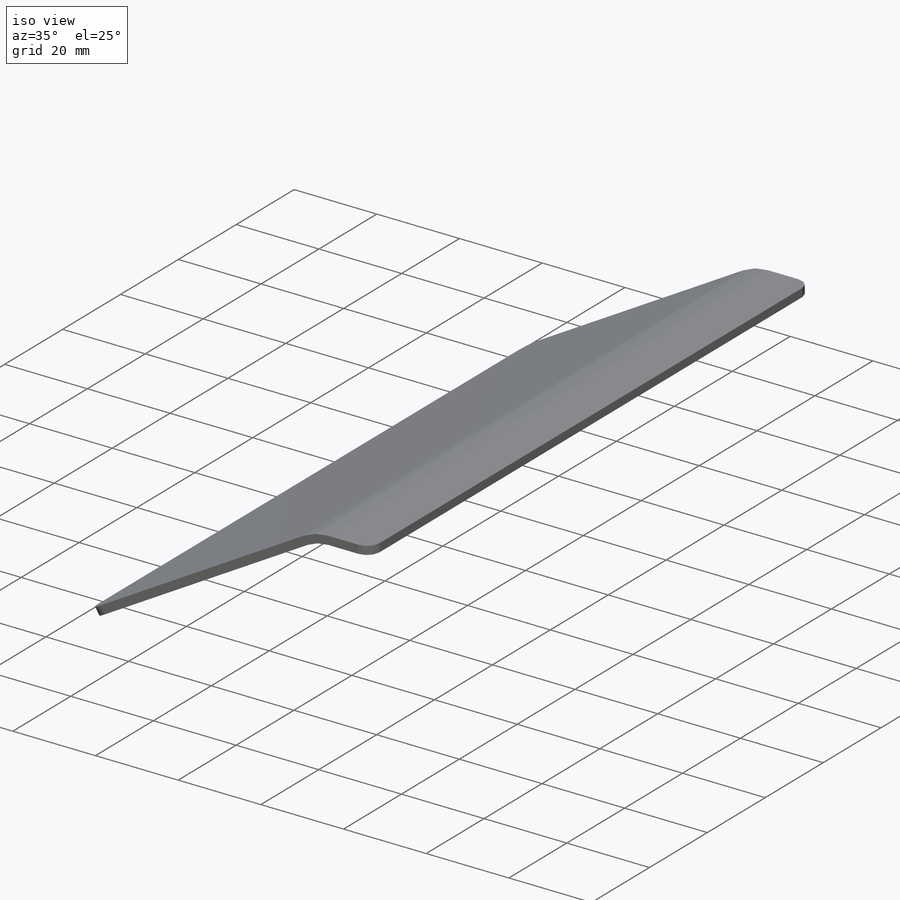
[diagram: iso view]
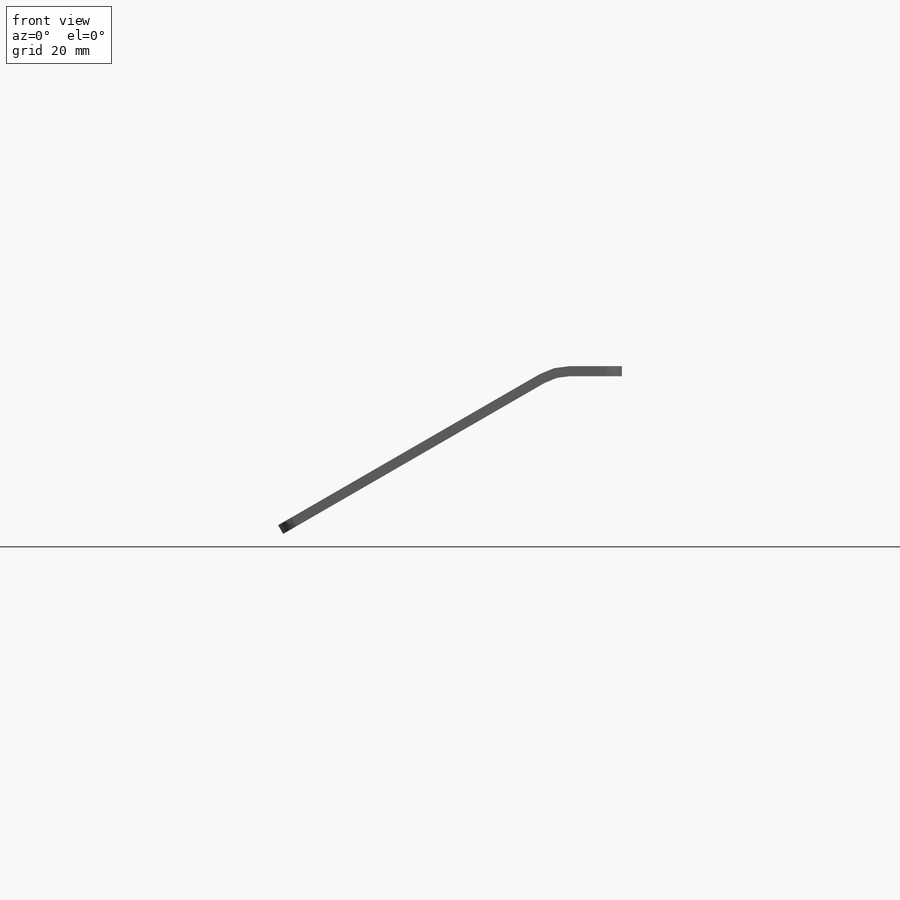
[diagram: front view]
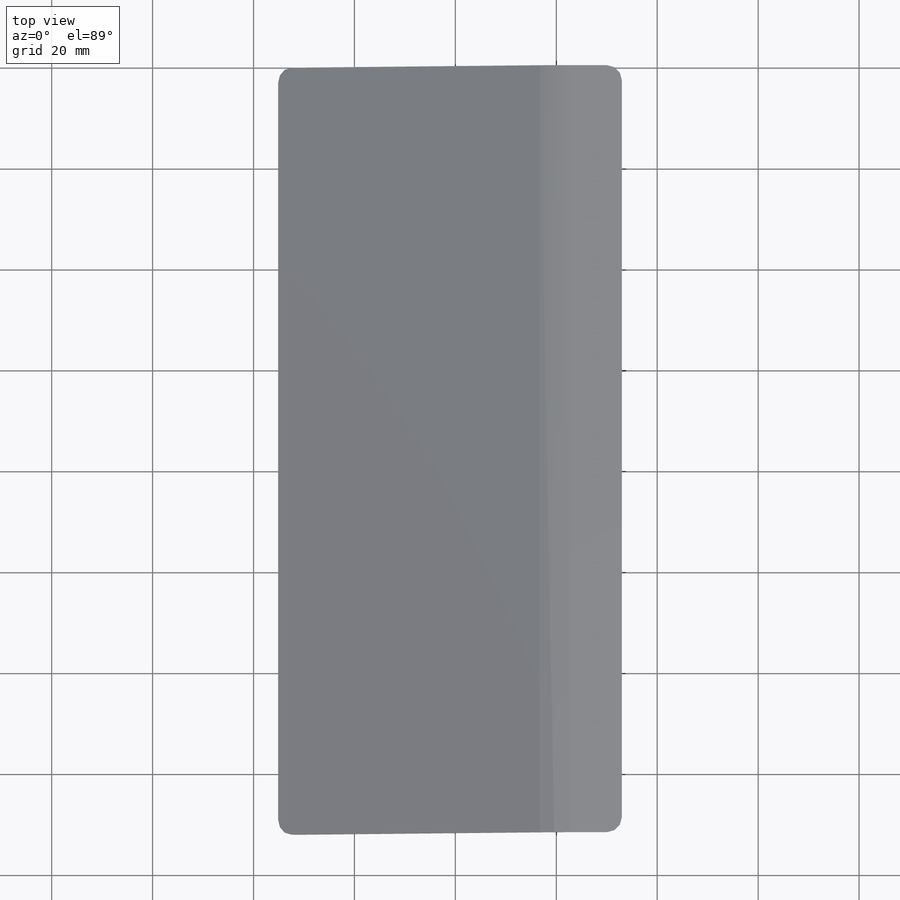
[diagram: top view]
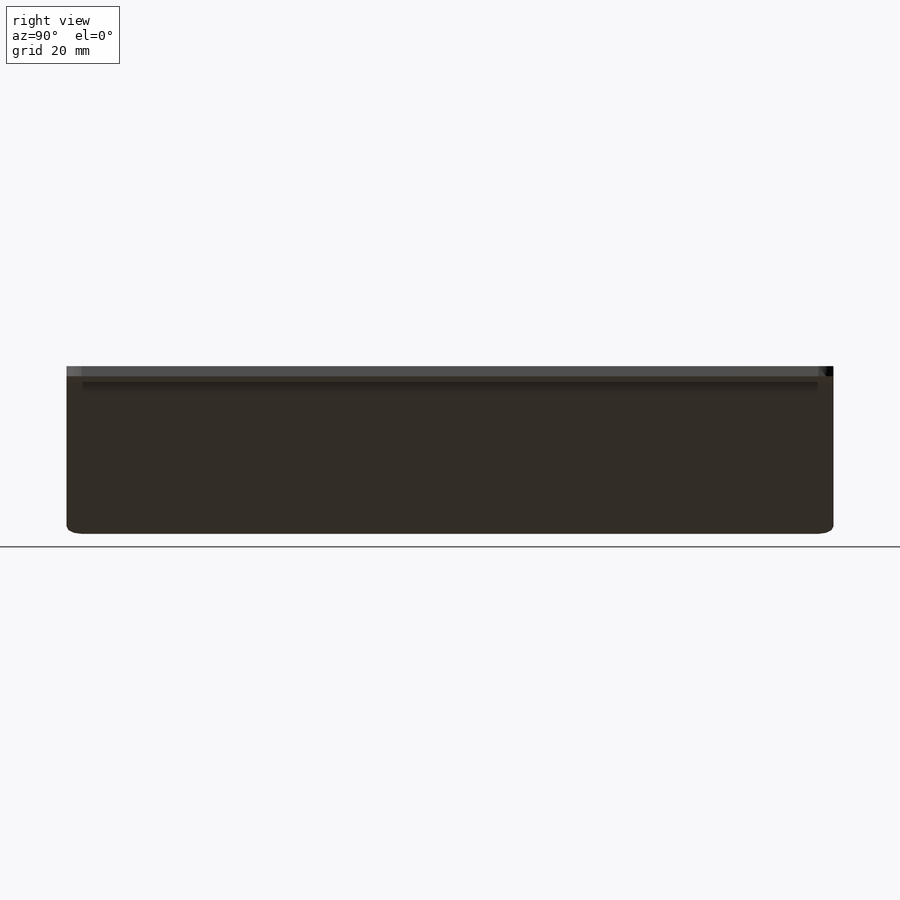
[diagram: right view]
SOLIDWORKS PART (.sldprt)
format: sldprt  version: not decoded by parser v0  size: 329,728 bytes
history: native  units: mm
features: fillet x4, sketch x3, sheet_metal_op x2, material x1 + 1 further entry (+11 scaffold rows collapsed; 3 parser-record rows omitted)
feature tree (25):
  scaffold x11  (default folders/planes/origin — collapsed)
  material  "Material <not specified>"
  sketch  "Sketch1"  dims[c1.D2=10.0mm c1.D1=~37.453507mm c2.D1=~159.372365deg c3.D1=~2617.993878mm c3.D3=13.0mm c3.D4=62.5mm]
  sheet_metal_op  "Sheet-Metal1"
  sheet_metal_op  "Base-Flange1"
  fillet  "Fillet5"  Radius=3mm
  fillet  "Fillet6"  Radius=3mm
  fillet  "Fillet7"  Radius=3mm
  fillet  "Fillet8"  Radius=3mm
  parser-record x3  (decoder bookkeeping rows leaked as tree rows — omitted from the tree; the rows remain in map.json)
  "Flat-Pattern1"
  sketch  "Bend-Lines1"
  sketch  "Bounding-Box1"
decode coverage: 5 of 9 modeling features carry decoded parameters; 1 rows unclassified (native names shown)
note: ~ marks probable driven/reference dimensions
note: suppression state not decoded; provenance and decode notes live in map.json
